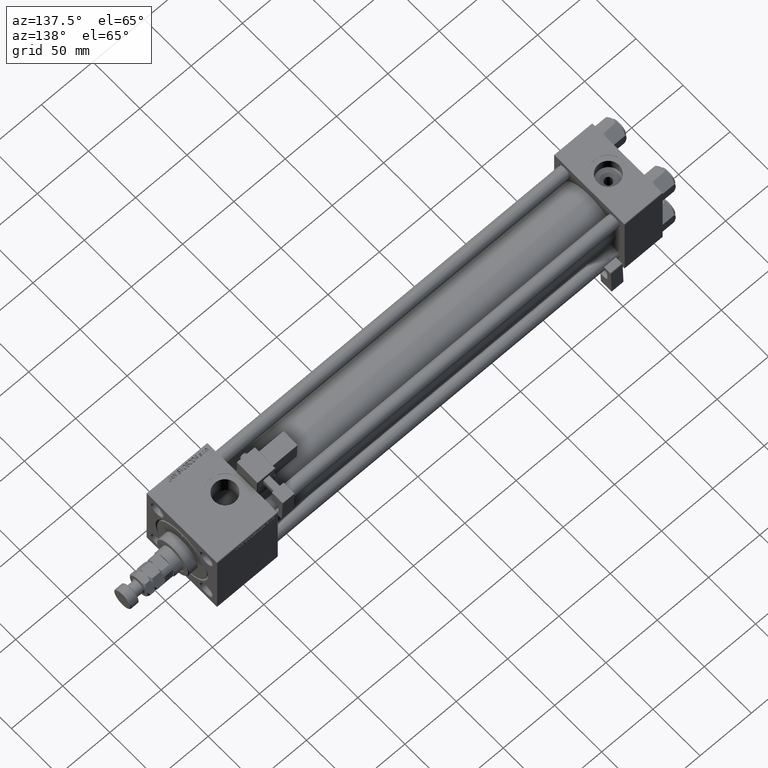
[diagram: clean part render]
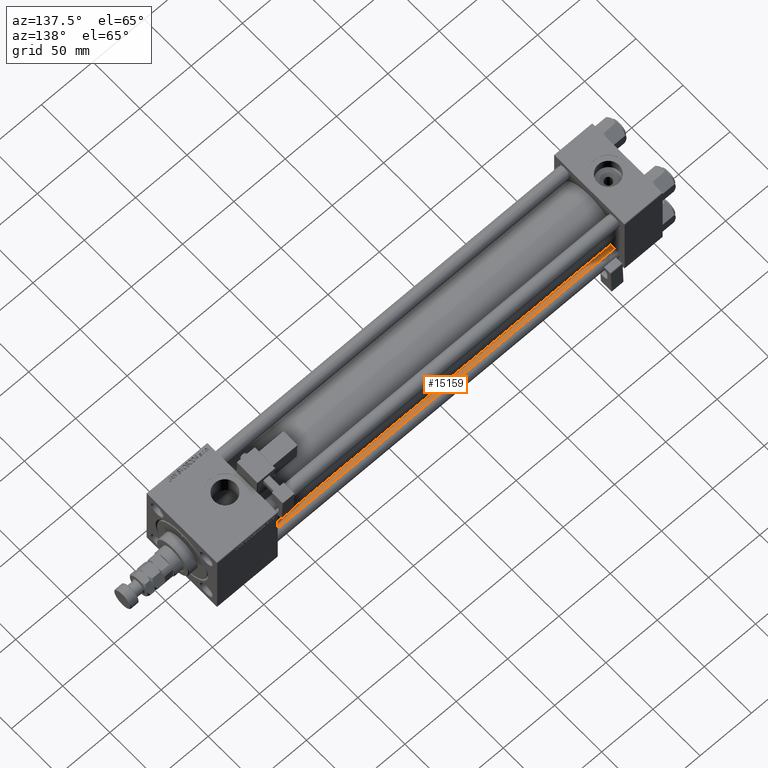
[diagram: same view with one face highlighted and labeled with its STEP entity id]
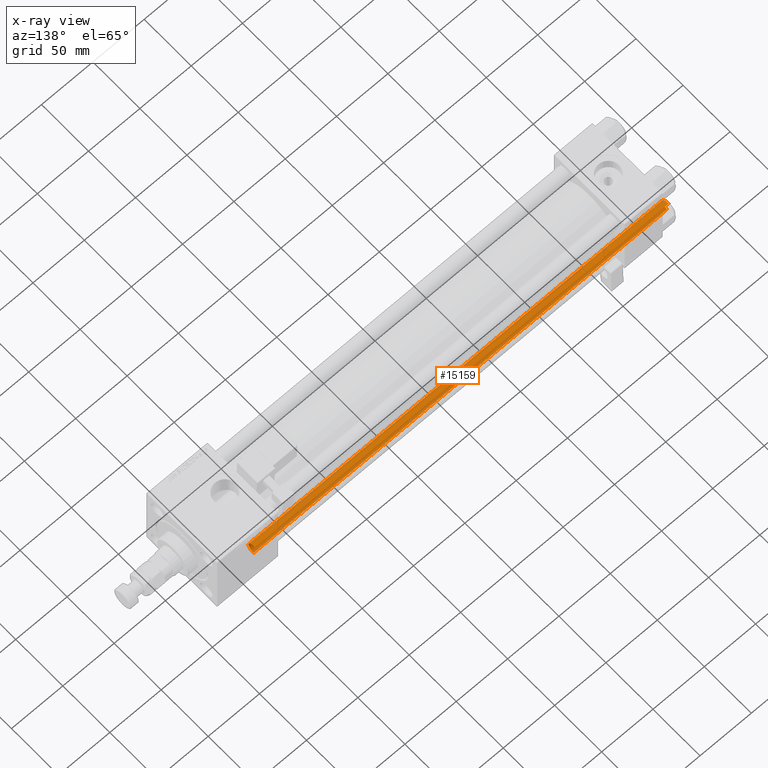
[diagram: x-ray of the same camera — body ghosted, the highlighted face saturated]
A machine part, auxiliary view. The second image highlights one B-rep face of the part: STEP entity #15159.
The next image is the same camera in x-ray: the body ghosted, the highlighted face saturated — about 0% of this face is hidden behind the body in this view.
In plain terms, the highlighted cylindrical surface (edge-blend (fillet) strip) has radius 6 mm, axis along (1, -0, 0).
Its self-contained STEP definition (entity closure, byte-faithful):
#113 = DIRECTION ( 'NONE',  ( 1.000000000000000000, 0.000000000000000000, 0.000000000000000000 ) ) ;
#1301 = FACE_OUTER_BOUND ( 'NONE', #32161, .T. ) ;
#4210 = CARTESIAN_POINT ( 'NONE',  ( 0.000000000000000000, 0.000000000000000000, 403.5000000000000000 ) ) ;
#4855 = DIRECTION ( 'NONE',  ( -0.000000000000000000, -0.000000000000000000, -1.000000000000000000 ) ) ;
#6486 = DIRECTION ( 'NONE',  ( 1.000000000000000000, 0.000000000000000000, 0.000000000000000000 ) ) ;
#6720 = DIRECTION ( 'NONE',  ( -0.000000000000000000, -0.000000000000000000, -1.000000000000000000 ) ) ;
#7518 = CIRCLE ( 'NONE', #52181, 6.000000000000000888 ) ;
#9682 = CARTESIAN_POINT ( 'NONE',  ( 6.000000000000000888, 7.347880794884120722E-16, 403.5000000000000000 ) ) ;
#9789 = DIRECTION ( 'NONE',  ( -1.000000000000000000, 0.000000000000000000, 0.000000000000000000 ) ) ;
#10317 = AXIS2_PLACEMENT_3D ( 'NONE', #48703, #44029, #6486 ) ;
#13627 = CARTESIAN_POINT ( 'NONE',  ( 0.000000000000000000, 0.000000000000000000, 404.0000000000000000 ) ) ;
#15159 = ADVANCED_FACE ( 'NONE', ( #1301 ), #35281, .T. ) ;
#15419 = ORIENTED_EDGE ( 'NONE', *, *, #40716, .T. ) ;
#18131 = VERTEX_POINT ( 'NONE', #32988 ) ;
#18190 = CIRCLE ( 'NONE', #10317, 6.000000000000000888 ) ;
#20932 = DIRECTION ( 'NONE',  ( 0.000000000000000000, 0.000000000000000000, -1.000000000000000000 ) ) ;
#21625 = EDGE_CURVE ( 'NONE', #23516, #18131, #7518, .T. ) ;
#23516 = VERTEX_POINT ( 'NONE', #9682 ) ;
#25494 = EDGE_CURVE ( 'NONE', #30312, #49496, #18190, .T. ) ;
#26248 = DIRECTION ( 'NONE',  ( -0.000000000000000000, -0.000000000000000000, -1.000000000000000000 ) ) ;
#30312 = VERTEX_POINT ( 'NONE', #36546 ) ;
#30501 = ORIENTED_EDGE ( 'NONE', *, *, #50375, .F. ) ;
#32161 = EDGE_LOOP ( 'NONE', ( #30501, #52743, #15419, #33694 ) ) ;
#32988 = CARTESIAN_POINT ( 'NONE',  ( -6.000000000000000888, 0.000000000000000000, 403.5000000000000000 ) ) ;
#33694 = ORIENTED_EDGE ( 'NONE', *, *, #25494, .T. ) ;
#35281 = CYLINDRICAL_SURFACE ( 'NONE', #52968, 6.000000000000000888 ) ;
#36546 = CARTESIAN_POINT ( 'NONE',  ( -6.000000000000000888, 0.000000000000000000, 0.5000000000000559552 ) ) ;
#37149 = LINE ( 'NONE', #53885, #51038 ) ;
#38626 = CARTESIAN_POINT ( 'NONE',  ( 6.000000000000000888, 7.347880794884120722E-16, 0.5000000000000559552 ) ) ;
#40716 = EDGE_CURVE ( 'NONE', #18131, #30312, #42402, .T. ) ;
#42402 = LINE ( 'NONE', #42668, #47310 ) ;
#42668 = CARTESIAN_POINT ( 'NONE',  ( -6.000000000000000888, 0.000000000000000000, 404.0000000000000000 ) ) ;
#44029 = DIRECTION ( 'NONE',  ( -0.000000000000000000, -0.000000000000000000, 1.000000000000000000 ) ) ;
#47310 = VECTOR ( 'NONE', #4855, 1000.000000000000000 ) ;
#48703 = CARTESIAN_POINT ( 'NONE',  ( 0.000000000000000000, 0.000000000000000000, 0.5000000000000559552 ) ) ;
#49496 = VERTEX_POINT ( 'NONE', #38626 ) ;
#50375 = EDGE_CURVE ( 'NONE', #23516, #49496, #37149, .T. ) ;
#51038 = VECTOR ( 'NONE', #6720, 1000.000000000000000 ) ;
#52181 = AXIS2_PLACEMENT_3D ( 'NONE', #4210, #20932, #113 ) ;
#52743 = ORIENTED_EDGE ( 'NONE', *, *, #21625, .T. ) ;
#52968 = AXIS2_PLACEMENT_3D ( 'NONE', #13627, #26248, #9789 ) ;
#53885 = CARTESIAN_POINT ( 'NONE',  ( 6.000000000000000888, 7.347880794884120722E-16, 404.0000000000000000 ) ) ;